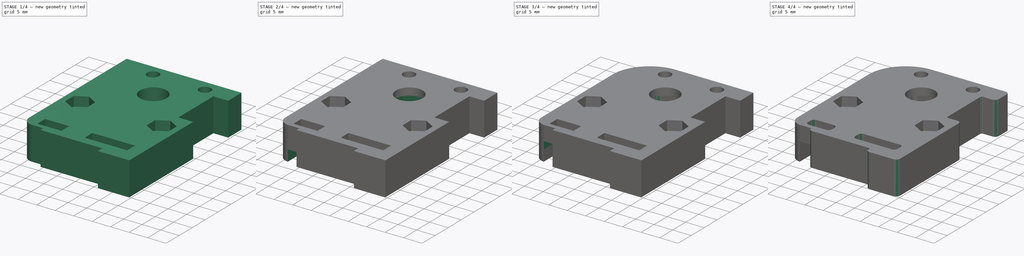
[diagram: build sequence overview — one tinted view per stage of 4, left to right]
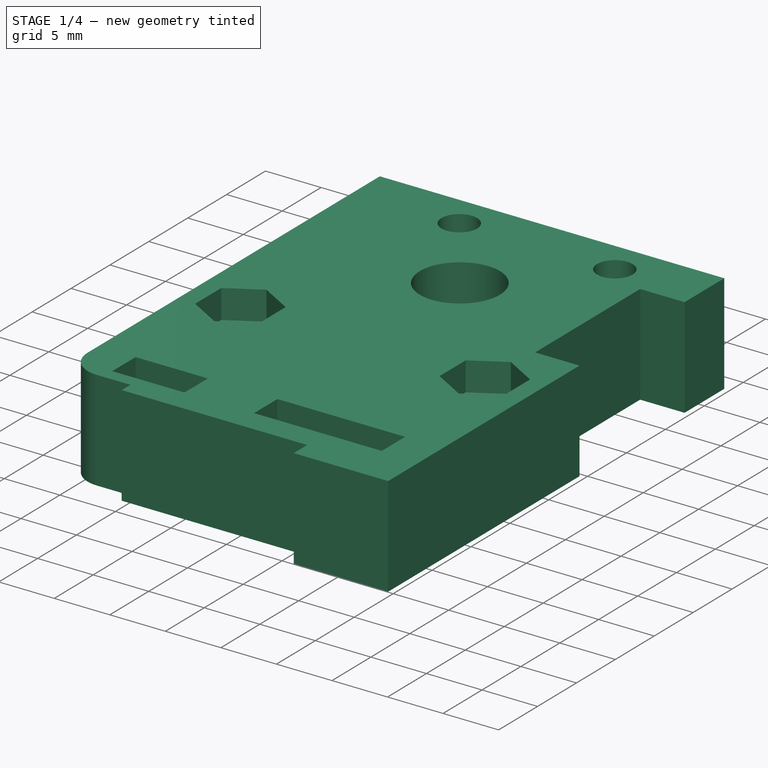
[diagram: stage 1 of 4 — iso view after this stage's code; geometry added in this stage tinted green]
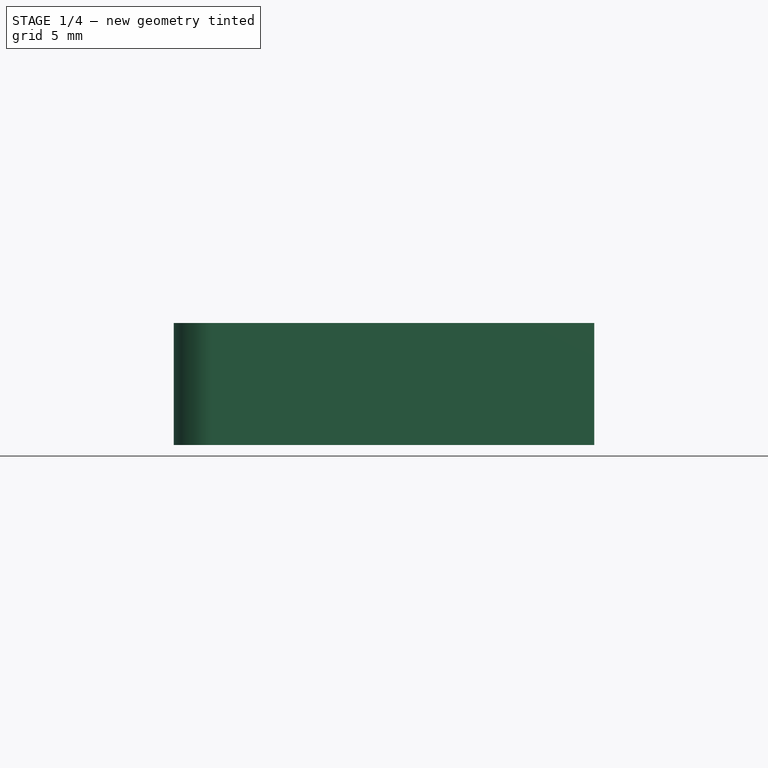
[diagram: stage 1 of 4 — front view after this stage's code; geometry added in this stage tinted green]
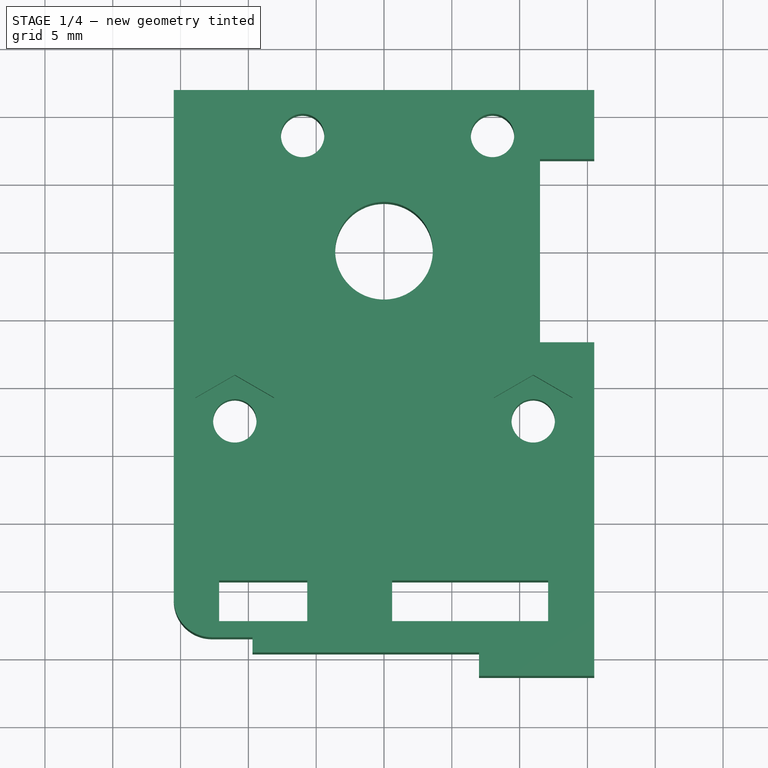
[diagram: stage 1 of 4 — top view after this stage's code; geometry added in this stage tinted green]
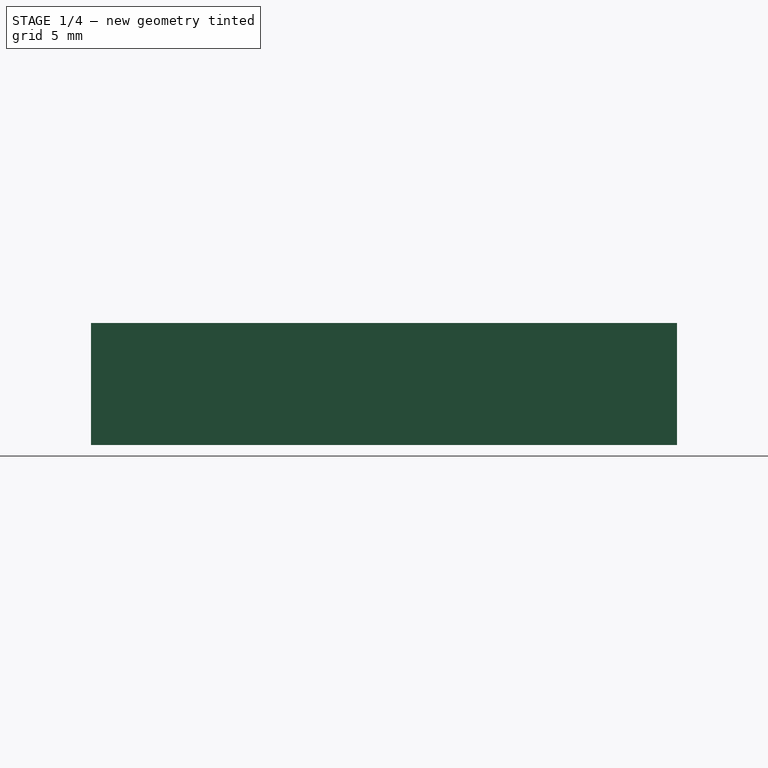
[diagram: stage 1 of 4 — right view after this stage's code; geometry added in this stage tinted green]
FCSTD DOCUMENT  (FreeCAD 0.18.4R)
Label: MJ_3d_holder_right_3p
License: All rights reserved
LicenseURL: http://en.wikipedia.org/wiki/All_rights_reserved
objects: Sketcher::SketchObject×5, PartDesign::Pocket×4, PartDesign::Fillet×4, PartDesign::Pad×1, PartDesign::Body×1
note: 20 computed .brp shape members not serialized (recipe doc carries the construction recipe); baked Part::Feature solids carry a one-line shape summary decoded from their .brp

FEATURE [Sketcher::SketchObject] Sketch
  MapMode = 5
  Support = -> [XY_Plane]
  sketch-geometry (56):
    g0: Circle CenterX=0 CenterY=0 CenterZ=0 NormalX=0 NormalY=0 NormalZ=1 AngleXU=0 Radius=3.6
    g1: Circle CenterX=-11 CenterY=-12.5 CenterZ=0 NormalX=0 NormalY=0 NormalZ=1 AngleXU=0 Radius=1.6
    g2: Circle CenterX=11 CenterY=-12.5 CenterZ=0 NormalX=0 NormalY=0 NormalZ=1 AngleXU=0 Radius=1.6
    g3: Circle CenterX=-6 CenterY=8.5 CenterZ=0 NormalX=0 NormalY=0 NormalZ=1 AngleXU=0 Radius=1.6
    g4: Circle CenterX=8 CenterY=8.5 CenterZ=0 NormalX=0 NormalY=0 NormalZ=1 AngleXU=0 Radius=1.6
    g5: LineSegment [constr] StartX=11.5 StartY=6.75 StartZ=0 EndX=14.5 EndY=6.75 EndZ=0
    g6: LineSegment [constr] StartX=14.5 StartY=6.75 StartZ=0 EndX=14.5 EndY=-6.75 EndZ=0
    g7: LineSegment [constr] StartX=14.5 StartY=-6.75 StartZ=0 EndX=11.5 EndY=-6.75 EndZ=0
    g8: LineSegment [constr] StartX=11.5 StartY=-6.75 StartZ=0 EndX=11.5 EndY=6.75 EndZ=0
    g9: GeomPoint X=13 Y=-6.75 Z=0
    g10: GeomPoint X=0 Y=-22 Z=0
    g11: LineSegment [constr] StartX=-12.7 StartY=-15.65 StartZ=0 EndX=12.7 EndY=-15.65 EndZ=0
    g12: LineSegment [constr] StartX=12.7 StartY=-15.65 StartZ=0 EndX=12.7 EndY=-28.35 EndZ=0
    g13: LineSegment [constr] StartX=12.7 StartY=-28.35 StartZ=0 EndX=-12.7 EndY=-28.35 EndZ=0
    g14: LineSegment [constr] StartX=-12.7 StartY=-28.35 StartZ=0 EndX=-12.7 EndY=-15.65 EndZ=0
    g15: LineSegment StartX=15.5 StartY=-31.35 StartZ=0 EndX=15.5 EndY=-6.75 EndZ=0
    g16: LineSegment StartX=15.5 StartY=11.85 StartZ=0 EndX=-15.5 EndY=11.85 EndZ=0
    g17: LineSegment StartX=-15.5 StartY=11.85 StartZ=0 EndX=-15.5 EndY=-25.7 EndZ=0
    g18: LineSegment [constr] StartX=-7 StartY=-29.62 StartZ=0 EndX=7 EndY=-29.62 EndZ=0
    g19: LineSegment [constr] StartX=7 StartY=-29.62 StartZ=0 EndX=7 EndY=-32.16 EndZ=0
    g20: LineSegment [constr] StartX=7 StartY=-32.16 StartZ=0 EndX=-7 EndY=-32.16 EndZ=0
    g21: LineSegment [constr] StartX=-7 StartY=-32.16 StartZ=0 EndX=-7 EndY=-29.62 EndZ=0
    g22: GeomPoint X=-7 Y=-30.89 Z=0
    g23: LineSegment [constr] StartX=-6 StartY=6 StartZ=0 EndX=6 EndY=6 EndZ=0
    g24: LineSegment [constr] StartX=6 StartY=6 StartZ=0 EndX=6 EndY=-6 EndZ=0
    g25: LineSegment [constr] StartX=6 StartY=-6 StartZ=0 EndX=-6 EndY=-6 EndZ=0
    g26: LineSegment [constr] StartX=-6 StartY=-6 StartZ=0 EndX=-6 EndY=6 EndZ=0
    g27: LineSegment [constr] StartX=-10.5 StartY=10.5 StartZ=0 EndX=15.8 EndY=10.5 EndZ=0
    g28: LineSegment [constr] StartX=15.8 StartY=10.5 StartZ=0 EndX=15.8 EndY=-8.5 EndZ=0
    g29: LineSegment [constr] StartX=15.8 StartY=-8.5 StartZ=0 EndX=-10.5 EndY=-8.5 EndZ=0
    g30: LineSegment [constr] StartX=-10.5 StartY=-8.5 StartZ=0 EndX=-10.5 EndY=10.5 EndZ=0
    g31: LineSegment StartX=11.5 StartY=6.75 StartZ=0 EndX=15.5 EndY=6.75 EndZ=0
    g32: LineSegment StartX=15.5 StartY=-6.75 StartZ=0 EndX=11.5 EndY=-6.75 EndZ=0
    g33: LineSegment StartX=11.5 StartY=-6.75 StartZ=0 EndX=11.5 EndY=6.75 EndZ=0
    g34: LineSegment StartX=15.5 StartY=6.75 StartZ=0 EndX=15.5 EndY=11.85 EndZ=0
    g35: LineSegment StartX=7 StartY=-29.62 StartZ=0 EndX=7 EndY=-31.35 EndZ=0
    g36: LineSegment StartX=7 StartY=-31.35 StartZ=0 EndX=15.5 EndY=-31.35 EndZ=0
    g37: Circle [constr] CenterX=-10.16 CenterY=-25.81 CenterZ=0 NormalX=0 NormalY=0 NormalZ=1 AngleXU=0 Radius=0.5
    g38: Circle [constr] CenterX=2.54 CenterY=-25.81 CenterZ=0 NormalX=0 NormalY=0 NormalZ=1 AngleXU=0 Radius=0.5
    g39: Circle [constr] CenterX=10.16 CenterY=-25.81 CenterZ=0 NormalX=0 NormalY=0 NormalZ=1 AngleXU=0 Radius=0.5
    g40: LineSegment StartX=-5.66 StartY=-24.31 StartZ=0 EndX=-12.16 EndY=-24.31 EndZ=0
    g41: LineSegment StartX=-12.16 StartY=-24.31 StartZ=0 EndX=-12.16 EndY=-27.31 EndZ=0
    g42: LineSegment StartX=-12.16 StartY=-27.31 StartZ=0 EndX=-5.66 EndY=-27.31 EndZ=0
    g43: LineSegment StartX=-5.66 StartY=-27.31 StartZ=0 EndX=-5.66 EndY=-24.31 EndZ=0
    g44: LineSegment StartX=0.6 StartY=-24.31 StartZ=0 EndX=12.1 EndY=-24.31 EndZ=0
    g45: LineSegment StartX=12.1 StartY=-24.31 StartZ=0 EndX=12.1 EndY=-27.31 EndZ=0
    g46: LineSegment StartX=12.1 StartY=-27.31 StartZ=0 EndX=0.6 EndY=-27.31 EndZ=0
    g47: LineSegment StartX=0.6 StartY=-27.31 StartZ=0 EndX=0.6 EndY=-24.31 EndZ=0
    g48: GeomPoint X=6.35 Y=-25.81 Z=0
    g49: ArcOfCircle CenterX=-12.7 CenterY=-25.7 CenterZ=0 NormalX=0 NormalY=0 NormalZ=1 AngleXU=0 Radius=2.8 StartAngle=3.14159 EndAngle=4.71239
    g50: LineSegment StartX=-9.7 StartY=-29.62 StartZ=0 EndX=7 EndY=-29.62 EndZ=0
    g51: LineSegment StartX=-9.7 StartY=-29.62 StartZ=0 EndX=-9.7 EndY=-28.5 EndZ=0
    g52: LineSegment StartX=-9.7 StartY=-28.5 StartZ=0 EndX=-12.7 EndY=-28.5 EndZ=0
    g53: Circle [constr] CenterX=0 CenterY=-30.89 CenterZ=0 NormalX=0 NormalY=0 NormalZ=1 AngleXU=0 Radius=0.5
    g54: Circle [constr] CenterX=2.54 CenterY=-30.89 CenterZ=0 NormalX=0 NormalY=0 NormalZ=1 AngleXU=0 Radius=0.5
    g55: Circle [constr] CenterX=5.08 CenterY=-30.89 CenterZ=0 NormalX=0 NormalY=0 NormalZ=1 AngleXU=0 Radius=0.5
  constraints (151):
    c: Coincident(g0,g-1)
    c: Diameter(g0) = 7.2
    c: Diameter(g2) = 3.2
    c: Equal(g1,g2)
    c: DistanceY(g2,g-1) = 12.5
    c: DistanceX(g1,g2) = 22
    c: Symmetric(g1,g2,g-2)
    c: Horizontal(g3,g4)
    c: Equal(g2,g4)
    c: Equal(g4,g3)
    c: DistanceY(g-1,g3) = 8.5
    c: DistanceX(g3,g4) = 14
    c: DistanceX(g3,g-1) = 6
    c: Coincident(g5,g6)
    c: Coincident(g6,g7)
    c: Coincident(g7,g8)
    c: Coincident(g8,g5)
    c: Horizontal(g5)
    c: Horizontal(g7)
    c: Vertical(g8)
    c: DistanceX(g5,g5) = 3
    c: DistanceY(g6,g6) = 13.5
    c: Symmetric(g5,g6,g-1)
    c: DistanceX(g-1,g9) = 13
    c: Symmetric(g7,g6,g9)
    c: PointOnObject(g10,g-2)
    c: DistanceY(g10,g0) = 22
    c: Coincident(g11,g12)
    c: Coincident(g12,g13)
    c: Coincident(g13,g14)
    c: Coincident(g14,g11)
    c: Horizontal(g11)
    c: Vertical(g12)
    c: Vertical(g14)
    c: DistanceX(g13,g13) = 25.4
    c: DistanceY(g12,g12) = 12.7
    c: Horizontal(g13)
    c: Symmetric(g11,g12,g10)
    c: Coincident(g36,g15)
    c: Coincident(g34,g16)
    c: Coincident(g16,g17)
    c: Vertical(g15)
    c: Vertical(g17)
    c: DistanceX(g16,g16) = 31
    c: Symmetric(g16,g34,g-2)
    c: DistanceY(g36,g12) = 3
    c: Coincident(g18,g19)
    c: Coincident(g19,g20)
    c: Coincident(g20,g21)
    c: Coincident(g21,g18)
    c: Vertical(g19)
    c: Vertical(g21)
    c: DistanceY(g19,g19) = 2.54
    c: DistanceX(g18,g18) = 14
    c: DistanceY(g22,g13) = 2.54
    c: Symmetric(g18,g20,g22)
    c: Coincident(g23,g24)
    c: Coincident(g24,g25)
    c: Coincident(g25,g26)
    c: Coincident(g26,g23)
    c: Horizontal(g23)
    c: Horizontal(g25)
    c: Vertical(g24)
    c: Vertical(g26)
    c: DistanceX(g23,g23) = 12
    c: Equal(g24,g23)
    c: Symmetric(g23,g24,g0)
    c: Coincident(g27,g28)
    c: Coincident(g28,g29)
    c: Coincident(g29,g30)
    c: Coincident(g30,g27)
    c: Horizontal(g27)
    c: Horizontal(g29)
    c: Vertical(g28)
    c: Vertical(g30)
    c: DistanceY(g28,g28) = 19
    c: DistanceX(g27,g27) = 26.3
    c: DistanceX(g27,g-1) = 10.5
    c: DistanceY(g-1,g27) = 10.5
    c: Coincident(g32,g33)
    c: Coincident(g33,g31)
    c: Horizontal(g31)
    c: Horizontal(g32)
    c: Vertical(g33)
    c: Coincident(g31,g5)
    c: Equal(g6,g33)
    c: Tangent(g15,g34)
    c: Vertical(g35)
    c: PointOnObject(g36,g19)
    c: Coincident(g32,g15)
    c: Coincident(g31,g34)
    c: Horizontal(g39,g38)
    c: Horizontal(g38,g37)
    c: Equal(g39,g38)
    c: Equal(g38,g37)
    c: Diameter(g37) = 1
    c: DistanceY(g37,g10) = 3.81
    c: DistanceX(g38,g39) = 7.62
    c: DistanceX(g10,g38) = 2.54
    c: DistanceX(g37,g-1) = 10.16
    c: Coincident(g40,g41)
    c: Coincident(g41,g42)
    c: Coincident(g42,g43)
    c: Coincident(g43,g40)
    c: Horizontal(g40)
    c: Horizontal(g42)
    c: Vertical(g41)
    c: Vertical(g43)
    c: Coincident(g44,g45)
    c: Coincident(g45,g46)
    c: Coincident(g46,g47)
    c: Coincident(g47,g44)
    c: Horizontal(g44)
    c: Horizontal(g46)
    c: Vertical(g45)
    c: Vertical(g47)
    c: Equal(g47,g43)
    c: DistanceY(g45,g45) = 3
    c: Symmetric(g38,g39,g48)
    c: Symmetric(g44,g45,g48)
    c: Horizontal(g44,g40)
    c: DistanceX(g46,g46) = 11.5
    c: DistanceX(g42,g42) = 6.5
    c: DistanceX(g40,g37) = 2
    c: DistanceY(g34,g34) = 5.1
    c: Tangent(g17,g49) = -1.5708
    c: Horizontal(g35,g18)
    c: Coincident(g35,g36)
    c: Symmetric(g20,g19,g-2)
    c: Horizontal(g18)
    c: PointOnObject(g50,g18)
    c: Coincident(g50,g35)
    c: Horizontal(g36)
    c: Vertical(g49,g49)
    c: Coincident(g51,g50)
    c: Vertical(g51)
    c: DistanceY(g51,g51) = 1.12
    c: Coincident(g52,g51)
    c: Horizontal(g52)
    c: DistanceX(g52,g52) = 3
    c: Coincident(g49,g52)
    c: Radius(g49) = 2.8
    c: PointOnObject(g53,g-2)
    c: Equal(g38,g53)
    c: Equal(g53,g54)
    c: Equal(g54,g55)
    c: Horizontal(g53,g54)
    c: Horizontal(g54,g55)
    c: DistanceX(g53,g54) = 2.54
    c: DistanceX(g54,g55) = 2.54
    c: DistanceY(g54,g38) = 5.08
FEATURE [PartDesign::Pad] Pad
  Length = 9
  Length2 = 100
  Profile = -> Sketch
  Type = 0
FEATURE [Sketcher::SketchObject] Sketch001
  MapMode = 5
  Placement = pos=(0,0,9) rot=(0,0,1;0rad)
  Support = -> [Pad]
  sketch-geometry (14):
    g0: LineSegment StartX=-8.1 StartY=-14.1743 StartZ=0 EndX=-8.1 EndY=-10.8257 EndZ=0
    g1: LineSegment StartX=-8.1 StartY=-10.8257 StartZ=0 EndX=-11 EndY=-9.15137 EndZ=0
    g2: LineSegment StartX=-11 StartY=-9.15137 StartZ=0 EndX=-13.9 EndY=-10.8257 EndZ=0
    g3: LineSegment StartX=-13.9 StartY=-10.8257 StartZ=0 EndX=-13.9 EndY=-14.1743 EndZ=0
    g4: LineSegment StartX=-13.9 StartY=-14.1743 StartZ=0 EndX=-11 EndY=-15.8486 EndZ=0
    g5: LineSegment StartX=-11 StartY=-15.8486 StartZ=0 EndX=-8.1 EndY=-14.1743 EndZ=0
    g6: Circle [constr] CenterX=-11 CenterY=-12.5 CenterZ=0 NormalX=0 NormalY=0 NormalZ=1 AngleXU=0 Radius=3.34863
    g7: LineSegment StartX=13.9 StartY=-14.1743 StartZ=0 EndX=13.9 EndY=-10.8257 EndZ=0
    g8: LineSegment StartX=13.9 StartY=-10.8257 StartZ=0 EndX=11 EndY=-9.15137 EndZ=0
    g9: LineSegment StartX=11 StartY=-9.15137 StartZ=0 EndX=8.1 EndY=-10.8257 EndZ=0
    g10: LineSegment StartX=8.1 StartY=-10.8257 StartZ=0 EndX=8.1 EndY=-14.1743 EndZ=0
    g11: LineSegment StartX=8.1 StartY=-14.1743 StartZ=0 EndX=11 EndY=-15.8486 EndZ=0
    g12: LineSegment StartX=11 StartY=-15.8486 StartZ=0 EndX=13.9 EndY=-14.1743 EndZ=0
    g13: Circle [constr] CenterX=11 CenterY=-12.5 CenterZ=0 NormalX=0 NormalY=0 NormalZ=1 AngleXU=0 Radius=3.34863
  constraints (33):
    c: Coincident(g0,g1)
    c: Coincident(g1,g2)
    c: Coincident(g2,g3)
    c: Coincident(g3,g4)
    c: Coincident(g4,g5)
    c: Coincident(g5,g0)
    c: Equal(g0, g1-g5) x5
    c: PointOnObject(g0,g6)
    c: PointOnObject(g1,g6)
    c: PointOnObject(g2,g6)
    c: PointOnObject(g3,g6)
    c: PointOnObject(g4,g6)
    c: PointOnObject(g5,g6)
    c: Coincident(g7,g8)
    c: Coincident(g8,g9)
    c: Coincident(g9,g10)
    c: Coincident(g10,g11)
    c: Coincident(g11,g12)
    c: Coincident(g12,g7)
    c: Equal(g7, g8-g12) x5
    c: PointOnObject(g7,g13)
    c: PointOnObject(g8,g13)
    c: PointOnObject(g9,g13)
    c: PointOnObject(g10,g13)
    c: PointOnObject(g11,g13)
    c: PointOnObject(g12,g13)
    c: DistanceX(g6,g13) = 22
    c: Symmetric(g6,g13,g-2)
    c: DistanceY(g6,g-1) = 12.5
    c: DistanceX(g3,g0) = 5.8
    c: Vertical(g3)
    c: DistanceX(g10,g7) = 5.8
    c: Vertical(g7)
FEATURE [Sketcher::SketchObject] Sketch002
  MapMode = 5
  Placement = pos=(0,0,0) rot=(1,0,0;3.14159rad)
  sketch-geometry (12):
    g0: LineSegment StartX=8.25 StartY=-4 StartZ=0 EndX=6.25 EndY=-4 EndZ=0
    g1: LineSegment StartX=-8.25 StartY=-4 StartZ=0 EndX=-8.25 EndY=4 EndZ=0
    g2: LineSegment StartX=-8.25 StartY=4 StartZ=0 EndX=-6.25 EndY=4 EndZ=0
    g3: LineSegment StartX=8.25 StartY=4 StartZ=0 EndX=8.25 EndY=-4 EndZ=0
    g4: LineSegment StartX=-6.25 StartY=6.25 StartZ=0 EndX=6.25 EndY=6.25 EndZ=0
    g5: LineSegment StartX=6.25 StartY=6.25 StartZ=0 EndX=6.25 EndY=4 EndZ=0
    g6: LineSegment StartX=6.25 StartY=-6.25 StartZ=0 EndX=-6.25 EndY=-6.25 EndZ=0
    g7: LineSegment StartX=-6.25 StartY=-6.25 StartZ=0 EndX=-6.25 EndY=-4 EndZ=0
    g8: LineSegment StartX=6.25 StartY=4 StartZ=0 EndX=8.25 EndY=4 EndZ=0
    g9: LineSegment StartX=-6.25 StartY=-4 StartZ=0 EndX=-8.25 EndY=-4 EndZ=0
    g10: LineSegment StartX=-6.25 StartY=4 StartZ=0 EndX=-6.25 EndY=6.25 EndZ=0
    g11: LineSegment StartX=6.25 StartY=-4 StartZ=0 EndX=6.25 EndY=-6.25 EndZ=0
  constraints (30):
    c: Coincident(g9,g1)
    c: Coincident(g1,g2)
    c: Coincident(g8,g3)
    c: Coincident(g3,g0)
    c: Horizontal(g0)
    c: Horizontal(g2)
    c: Vertical(g1)
    c: Vertical(g3)
    c: DistanceX(g2,g8) = 16.5
    c: DistanceY(g1,g1) = 8
    c: Symmetric(g0,g1,g-1)
    c: Coincident(g4,g5)
    c: Coincident(g11,g6)
    c: Coincident(g6,g7)
    c: Coincident(g10,g4)
    c: Horizontal(g4)
    c: Horizontal(g6)
    c: Vertical(g5)
    c: Vertical(g7)
    c: DistanceX(g4,g4) = 12.5
    c: DistanceY(g7,g10) = 12.5
    c: Symmetric(g4,g11,g-1)
    c: Tangent(g2,g8)
    c: Tangent(g0,g9)
    c: Coincident(g7,g9)
    c: Coincident(g10,g2)
    c: Tangent(g7,g10)
    c: Coincident(g5,g8)
    c: Coincident(g11,g0)
    c: Tangent(g5,g11)
FEATURE [Sketcher::SketchObject] Sketch003
  MapMode = 5
  Placement = pos=(0,0,0) rot=(1,0,0;3.14159rad)
  sketch-geometry (5):
    g0: LineSegment StartX=12.85 StartY=15.5 StartZ=0 EndX=-12.85 EndY=15.5 EndZ=0
    g1: LineSegment StartX=-12.85 StartY=15.5 StartZ=0 EndX=-12.85 EndY=28.5 EndZ=0
    g2: LineSegment StartX=-12.85 StartY=28.5 StartZ=0 EndX=12.85 EndY=28.5 EndZ=0
    g3: LineSegment StartX=12.85 StartY=28.5 StartZ=0 EndX=12.85 EndY=15.5 EndZ=0
    g4: GeomPoint X=0 Y=22 Z=0
  constraints (13):
    c: Coincident(g0,g1)
    c: Coincident(g1,g2)
    c: Coincident(g2,g3)
    c: Coincident(g3,g0)
    c: Horizontal(g0)
    c: Horizontal(g2)
    c: Vertical(g1)
    c: Vertical(g3)
    c: DistanceX(g2,g2) = 25.7
    c: DistanceY(g3,g3) = 13
    c: PointOnObject(g4,g-2)
    c: DistanceY(g-1,g4) = 22
    c: Symmetric(g0,g1,g4)
FEATURE [PartDesign::Pocket] Pocket
  BaseFeature = -> Pad
  Length = 2.6
  Length2 = 100
  Profile = -> Sketch001
  Type = 0
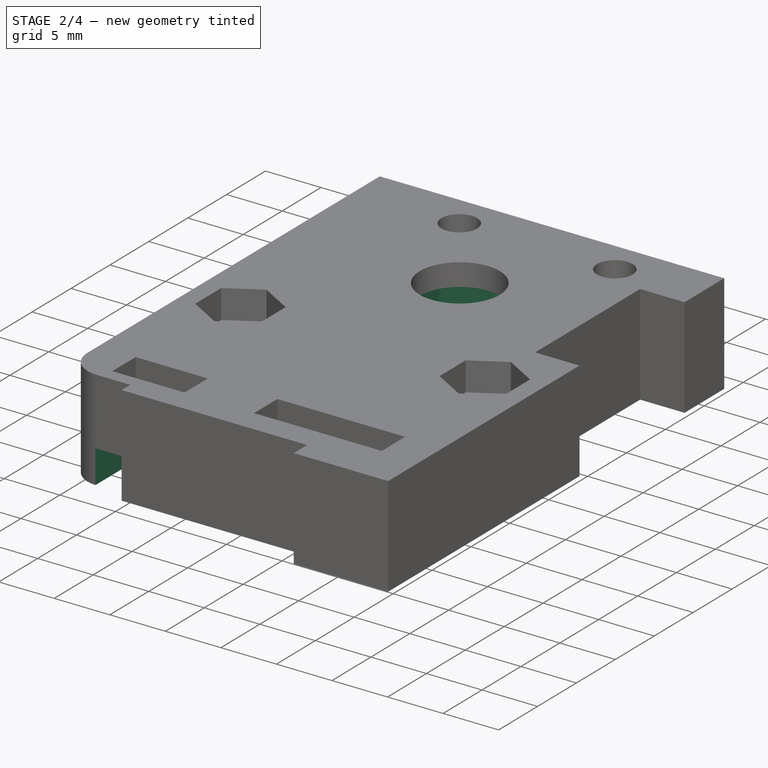
[diagram: stage 2 of 4 — iso view after this stage's code; geometry added in this stage tinted green]
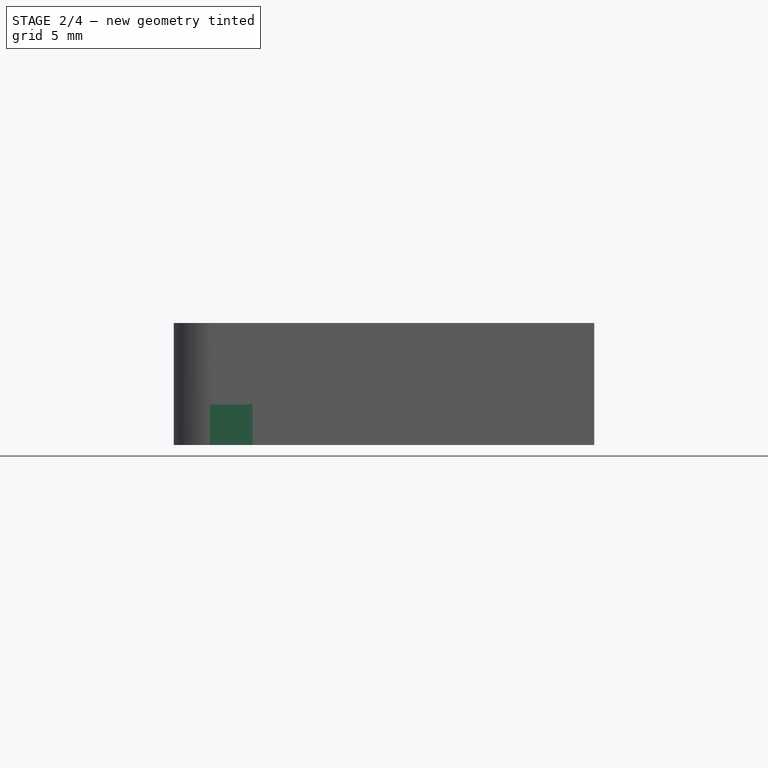
[diagram: stage 2 of 4 — front view after this stage's code; geometry added in this stage tinted green]
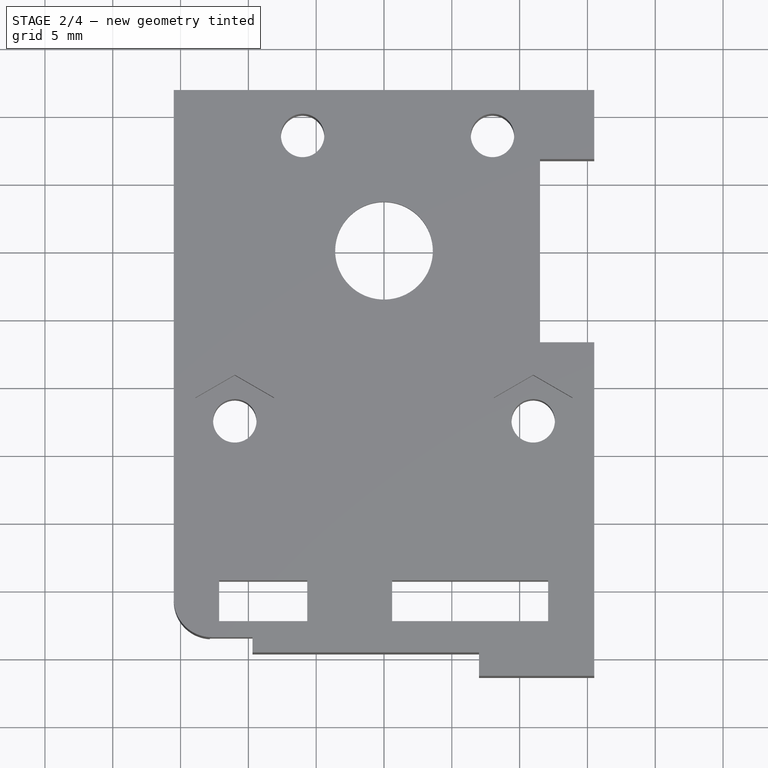
[diagram: stage 2 of 4 — top view after this stage's code; geometry added in this stage tinted green]
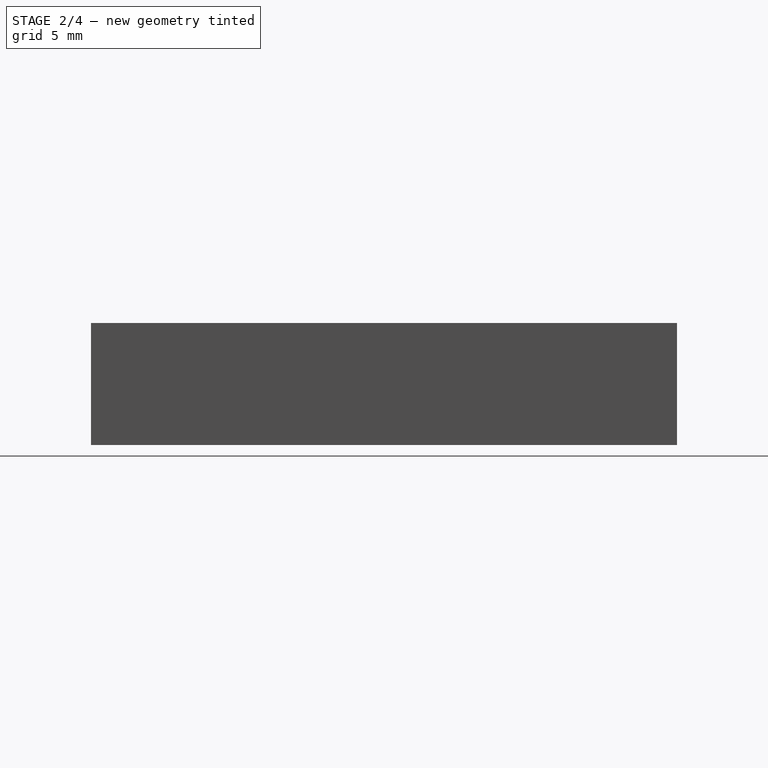
[diagram: stage 2 of 4 — right view after this stage's code; geometry added in this stage tinted green]
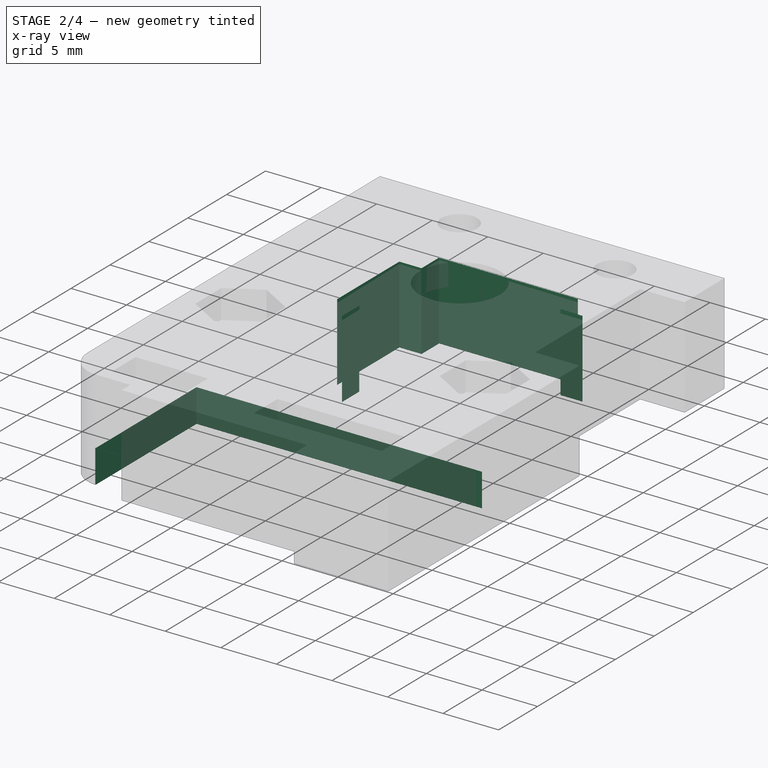
[diagram: stage 2 of 4 — x-ray composite at the iso view; earlier geometry ghosted, this stage's added geometry solid]
FEATURE [PartDesign::Pocket] Pocket001
  BaseFeature = -> Pocket
  Length = 7
  Length2 = 100
  Profile = -> Sketch002
  Type = 0
FEATURE [PartDesign::Pocket] Pocket002
  BaseFeature = -> Pocket001
  Length = 3
  Length2 = 100
  Profile = -> Sketch003
  Type = 0
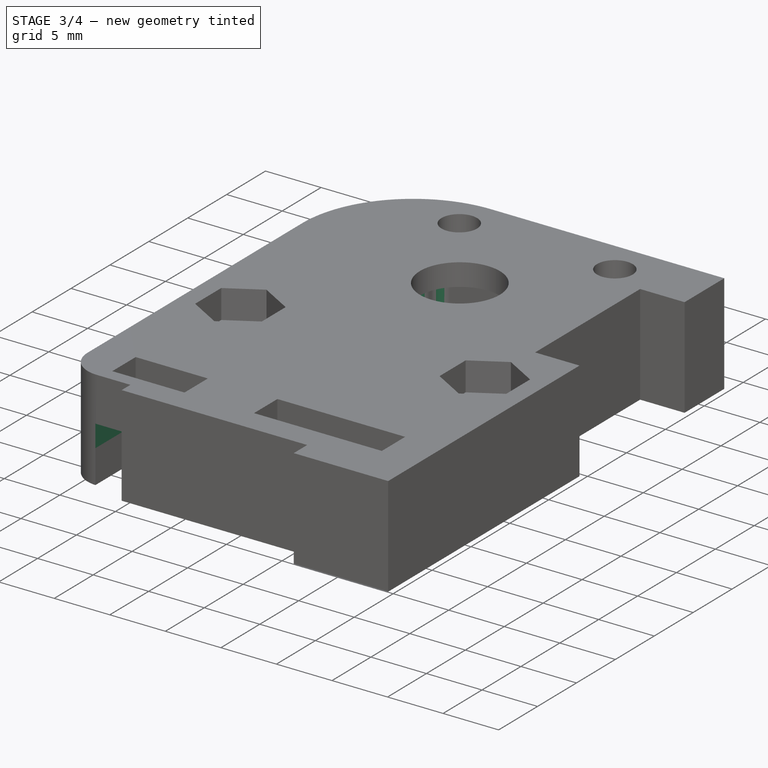
[diagram: stage 3 of 4 — iso view after this stage's code; geometry added in this stage tinted green]
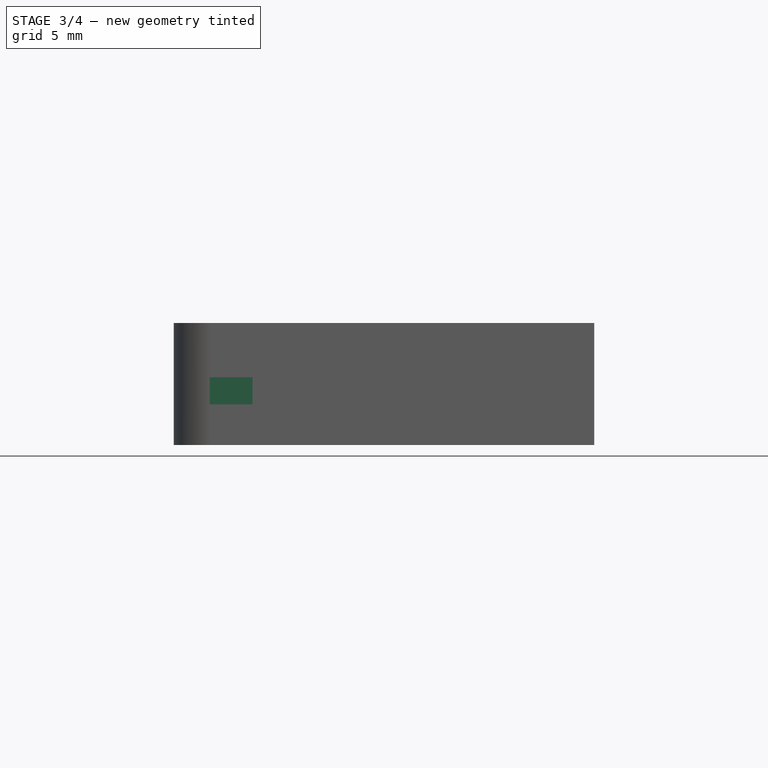
[diagram: stage 3 of 4 — front view after this stage's code; geometry added in this stage tinted green]
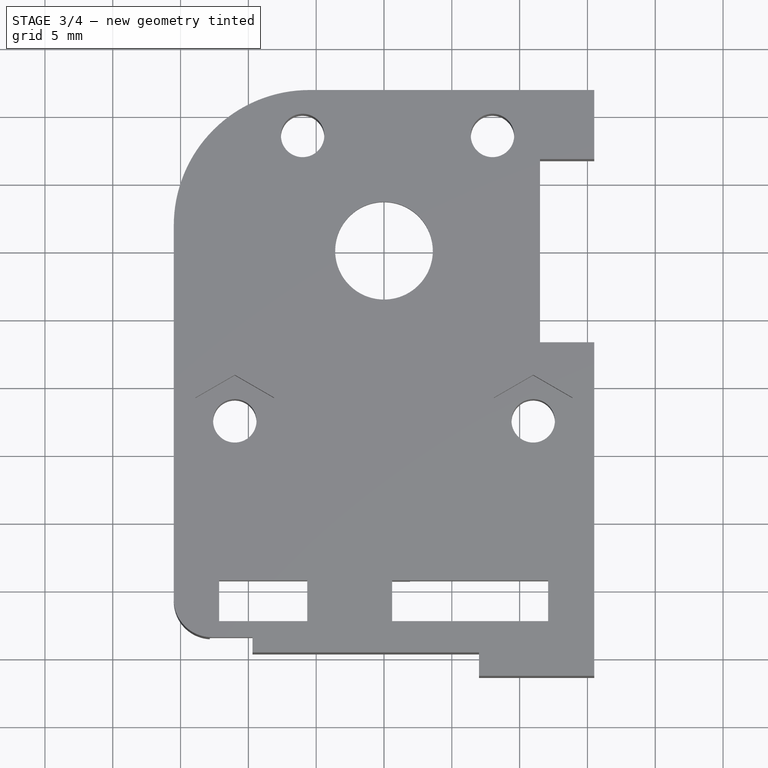
[diagram: stage 3 of 4 — top view after this stage's code; geometry added in this stage tinted green]
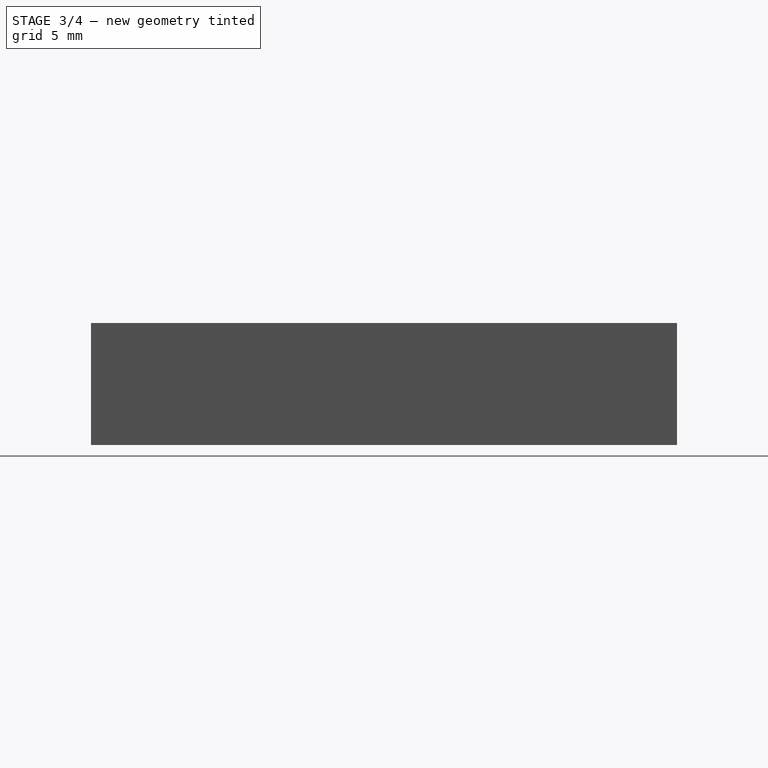
[diagram: stage 3 of 4 — right view after this stage's code; geometry added in this stage tinted green]
FEATURE [Sketcher::SketchObject] Sketch004
  MapMode = 5
  Placement = pos=(0,0,3) rot=(1,0,0;3.14159rad)
  Support = -> [Pocket002]
  sketch-geometry (34):
    g0: LineSegment [constr] StartX=12.85 StartY=15.5 StartZ=0 EndX=-12.85 EndY=15.5 EndZ=0
    g1: LineSegment [constr] StartX=-12.85 StartY=15.5 StartZ=0 EndX=-12.85 EndY=28.5 EndZ=0
    g2: LineSegment [constr] StartX=-12.85 StartY=28.5 StartZ=0 EndX=12.85 EndY=28.5 EndZ=0
    g3: LineSegment [constr] StartX=12.85 StartY=28.5 StartZ=0 EndX=12.85 EndY=15.5 EndZ=0
    g4: GeomPoint X=0 Y=22 Z=0
    g5: LineSegment [constr] StartX=12.85 StartY=20.5 StartZ=0 EndX=-12.85 EndY=20.5 EndZ=0
    g6: LineSegment [constr] StartX=-12.85 StartY=20.5 StartZ=0 EndX=-12.85 EndY=23.5 EndZ=0
    g7: LineSegment [constr] StartX=-12.85 StartY=23.5 StartZ=0 EndX=12.85 EndY=23.5 EndZ=0
    g8: LineSegment [constr] StartX=12.85 StartY=23.5 StartZ=0 EndX=12.85 EndY=20.5 EndZ=0
    g9: LineSegment [constr] StartX=1.5 StartY=15.5 StartZ=0 EndX=-1.5 EndY=15.5 EndZ=0
    g10: LineSegment [constr] StartX=-1.5 StartY=15.5 StartZ=0 EndX=-1.5 EndY=28.5 EndZ=0
    g11: LineSegment [constr] StartX=-1.5 StartY=28.5 StartZ=0 EndX=1.5 EndY=28.5 EndZ=0
    g12: LineSegment [constr] StartX=1.5 StartY=28.5 StartZ=0 EndX=1.5 EndY=15.5 EndZ=0
    g13: Circle CenterX=0 CenterY=22 CenterZ=0 NormalX=0 NormalY=0 NormalZ=1 AngleXU=0 Radius=1.8
    g14: LineSegment StartX=1.5 StartY=15.5 StartZ=0 EndX=12.85 EndY=15.5 EndZ=0
    g15: LineSegment StartX=12.85 StartY=15.5 StartZ=0 EndX=12.85 EndY=20.5 EndZ=0
    g16: LineSegment StartX=12.85 StartY=20.5 StartZ=0 EndX=3.5 EndY=20.5 EndZ=0
    g17: LineSegment StartX=1.5 StartY=18.5 StartZ=0 EndX=1.5 EndY=15.5 EndZ=0
    g18: LineSegment StartX=-1.5 StartY=15.5 StartZ=0 EndX=-12.85 EndY=15.5 EndZ=0
    g19: LineSegment StartX=-12.85 StartY=15.5 StartZ=0 EndX=-12.85 EndY=20.5 EndZ=0
    g20: LineSegment StartX=-12.85 StartY=20.5 StartZ=0 EndX=-3.5 EndY=20.5 EndZ=0
    g21: LineSegment StartX=-1.5 StartY=18.5 StartZ=0 EndX=-1.5 EndY=15.5 EndZ=0
    g22: LineSegment StartX=12.85 StartY=23.5 StartZ=0 EndX=3.5 EndY=23.5 EndZ=0
    g23: LineSegment StartX=1.5 StartY=25.5 StartZ=0 EndX=1.5 EndY=28.5 EndZ=0
    g24: LineSegment StartX=1.5 StartY=28.5 StartZ=0 EndX=12.85 EndY=28.5 EndZ=0
    g25: LineSegment StartX=12.85 StartY=28.5 StartZ=0 EndX=12.85 EndY=23.5 EndZ=0
    g26: LineSegment StartX=-12.85 StartY=23.5 StartZ=0 EndX=-3.5 EndY=23.5 EndZ=0
    g27: LineSegment StartX=-1.5 StartY=25.5 StartZ=0 EndX=-1.5 EndY=28.5 EndZ=0
    g28: LineSegment StartX=-1.5 StartY=28.5 StartZ=0 EndX=-12.85 EndY=28.5 EndZ=0
    g29: LineSegment StartX=-12.85 StartY=28.5 StartZ=0 EndX=-12.85 EndY=23.5 EndZ=0
    g30: ArcOfCircle CenterX=3.5 CenterY=18.5 CenterZ=0 NormalX=0 NormalY=0 NormalZ=1 AngleXU=0 Radius=2 StartAngle=1.5708 EndAngle=3.14159
    g31: ArcOfCircle CenterX=-3.5 CenterY=18.5 CenterZ=0 NormalX=0 NormalY=0 NormalZ=1 AngleXU=0 Radius=2 StartAngle=-9e-16 EndAngle=1.5708
    g32: ArcOfCircle CenterX=-3.5 CenterY=25.5 CenterZ=0 NormalX=0 NormalY=0 NormalZ=1 AngleXU=0 Radius=2 StartAngle=4.71239 EndAngle=6.28319
    g33: ArcOfCircle CenterX=3.5 CenterY=25.5 CenterZ=0 NormalX=0 NormalY=0 NormalZ=1 AngleXU=0 Radius=2 StartAngle=3.14159 EndAngle=4.71239
  constraints (85):
    c: Coincident(g0,g1)
    c: Coincident(g1,g2)
    c: Coincident(g2,g3)
    c: Coincident(g3,g0)
    c: Horizontal(g0)
    c: Horizontal(g2)
    c: Vertical(g1)
    c: Vertical(g3)
    c: DistanceX(g0,g0) = 25.7
    c: DistanceY(g3,g3) = 13
    c: PointOnObject(g4,g-2)
    c: DistanceY(g-1,g4) = 22
    c: Symmetric(g0,g1,g4)
    c: Coincident(g5,g6)
    c: Coincident(g6,g7)
    c: Coincident(g7,g8)
    c: Coincident(g8,g5)
    c: Horizontal(g5)
    c: Horizontal(g7)
    c: Vertical(g6)
    c: Vertical(g8)
    c: PointOnObject(g5,g3)
    c: Symmetric(g5,g6,g4)
    c: DistanceY(g5,g7) = 3
    c: Coincident(g9,g10)
    c: Coincident(g10,g11)
    c: Coincident(g11,g12)
    c: Coincident(g12,g9)
    c: Horizontal(g9)
    c: Horizontal(g11)
    c: Vertical(g10)
    c: Vertical(g12)
    c: PointOnObject(g9,g0)
    c: Symmetric(g9,g10,g4)
    c: DistanceX(g10,g11) = 3
    c: Coincident(g13,g4)
    c: Diameter(g13) = 3.6
    c: Coincident(g14,g15)
    c: Coincident(g15,g16)
    c: Coincident(g17,g14)
    c: Horizontal(g14)
    c: Horizontal(g16)
    c: Vertical(g15)
    c: Vertical(g17)
    c: Coincident(g14,g9)
    c: Coincident(g15,g5)
    c: Coincident(g18,g19)
    c: Coincident(g19,g20)
    c: Coincident(g21,g18)
    c: Horizontal(g18)
    c: Horizontal(g20)
    c: Vertical(g19)
    c: Vertical(g21)
    c: Coincident(g18,g9)
    c: Coincident(g19,g5)
    c: Coincident(g23,g24)
    c: Coincident(g24,g25)
    c: Coincident(g25,g22)
    c: Horizontal(g22)
    c: Horizontal(g24)
    c: Vertical(g23)
    c: Vertical(g25)
    c: Coincident(g22,g7)
    c: Coincident(g23,g11)
    c: Coincident(g27,g28)
    c: Coincident(g28,g29)
    c: Coincident(g29,g26)
    c: Horizontal(g26)
    c: Horizontal(g28)
    c: Vertical(g27)
    c: Vertical(g29)
    c: Coincident(g26,g6)
    c: Coincident(g27,g10)
    c: Tangent(g17,g30) = -1.5708
    c: Tangent(g16,g30) = -1.5708
    c: Tangent(g21,g31) = 1.5708
    c: Tangent(g20,g31) = 1.5708
    c: Tangent(g26,g32) = -1.5708
    c: Tangent(g27,g32) = -1.5708
    c: Tangent(g22,g33) = 1.5708
    c: Tangent(g23,g33) = 1.5708
    c: Radius(g30) = 2
    c: Equal(g30,g31)
    c: Equal(g31,g32)
    c: Equal(g32,g33)
FEATURE [PartDesign::Pocket] Pocket003
  BaseFeature = -> Pocket002
  Length = 2
  Length2 = 100
  Profile = -> Sketch004
  Type = 0
FEATURE [PartDesign::Fillet] Fillet
  Base = -> Pocket003 [Edge99]
  BaseFeature = -> Pocket003
  Radius = 10
FEATURE [PartDesign::Fillet] Fillet001
  Base = -> Fillet [Edge92,Edge96,Edge88,Edge85,Edge86,Edge90,Edge94,Edge98,Edge102,Edge106,Edge104,Edge100]
  BaseFeature = -> Fillet
  Radius = 0.99
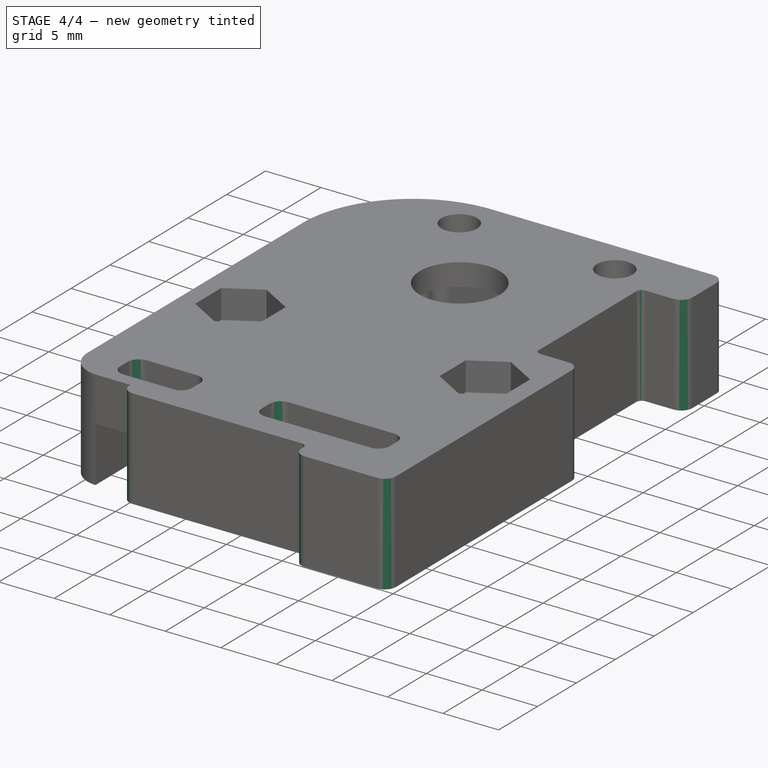
[diagram: stage 4 of 4 — iso view after this stage's code; geometry added in this stage tinted green]
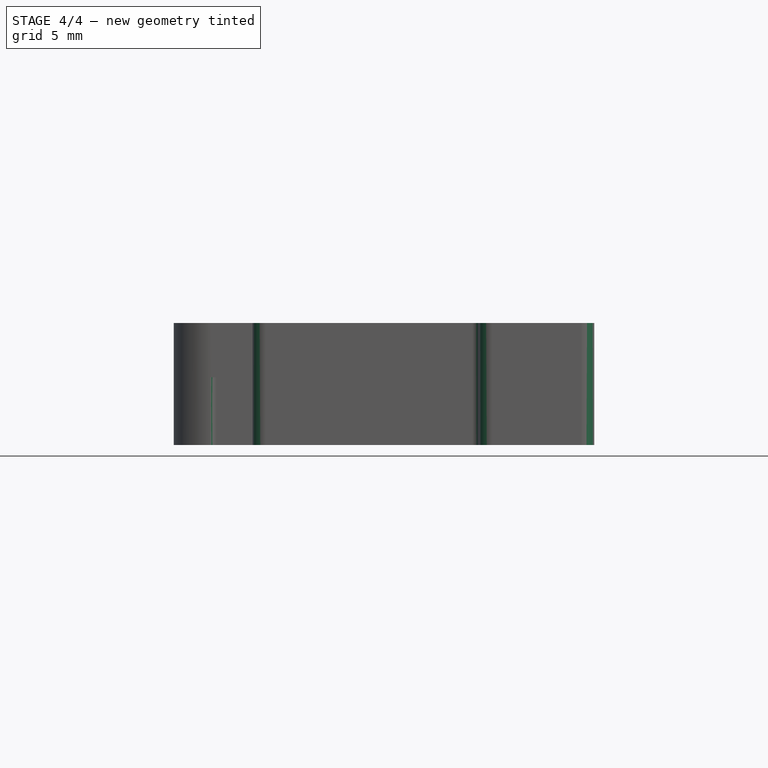
[diagram: stage 4 of 4 — front view after this stage's code; geometry added in this stage tinted green]
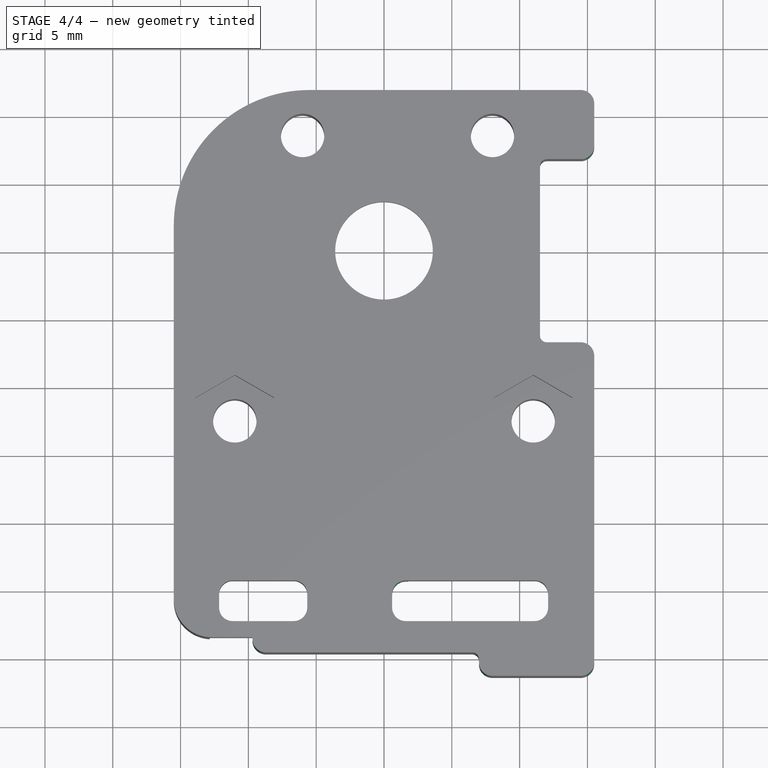
[diagram: stage 4 of 4 — top view after this stage's code; geometry added in this stage tinted green]
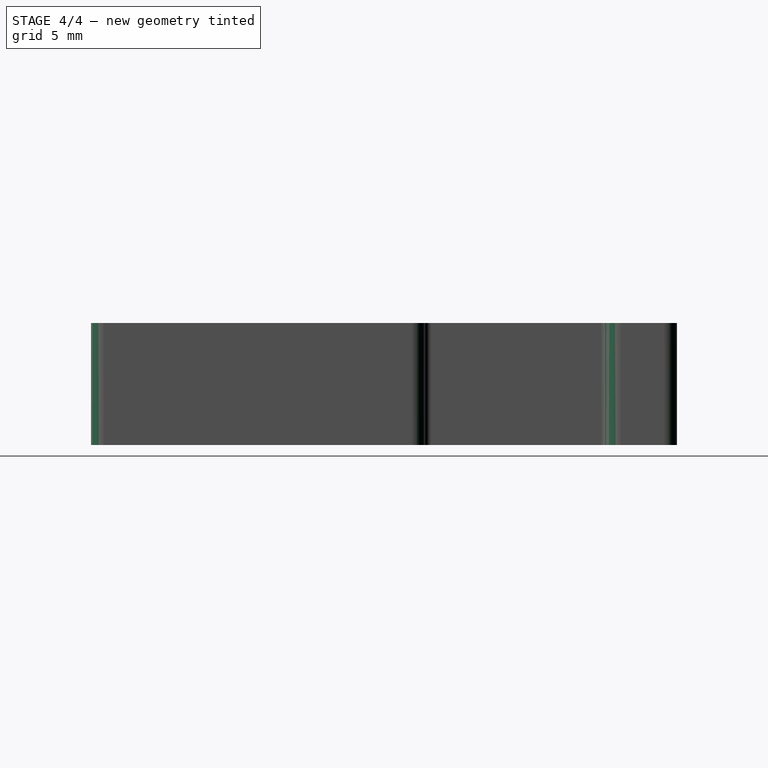
[diagram: stage 4 of 4 — right view after this stage's code; geometry added in this stage tinted green]
FEATURE [PartDesign::Fillet] Fillet002
  Base = -> Fillet001 [Edge104,Edge128,Edge110,Edge134,Edge138,Edge130,Edge242,Edge230,Edge229,Edge244,Edge231,Edge228,Edge240,Edge241]
  BaseFeature = -> Fillet001
  Radius = 1
FEATURE [PartDesign::Fillet] Fillet003
  Base = -> Fillet002 [Edge70,Edge76,Edge106,Edge78,Edge233,Edge238,Edge240,Edge84,Edge237,Edge75,Edge212,Edge197,Edge213,Edge289,Edge280,Edge312]
  BaseFeature = -> Fillet002
  Radius = 0.5
FEATURE [PartDesign::Body] Body  label="3d_holder_right"
  Group = -> [Sketch004,Sketch,Pad,Sketch001,Sketch002,Sketch003,Pocket,Pocket001,Pocket002,Pocket003,Fillet,Fillet001,Fillet002,Fillet003]
  Origin = -> Origin
  Tip = -> Fillet003
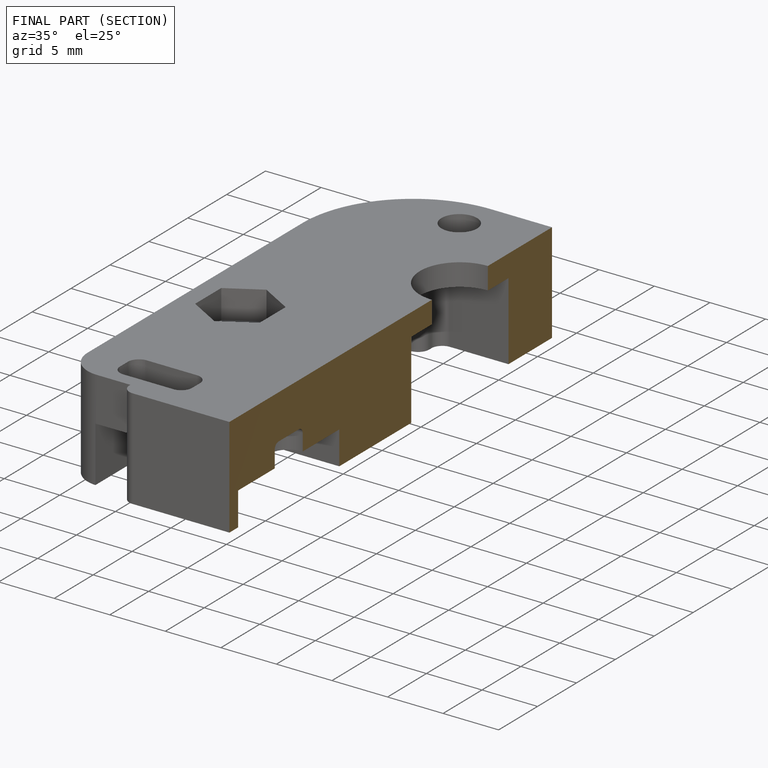
[diagram: finished part — half-section view (interior)]
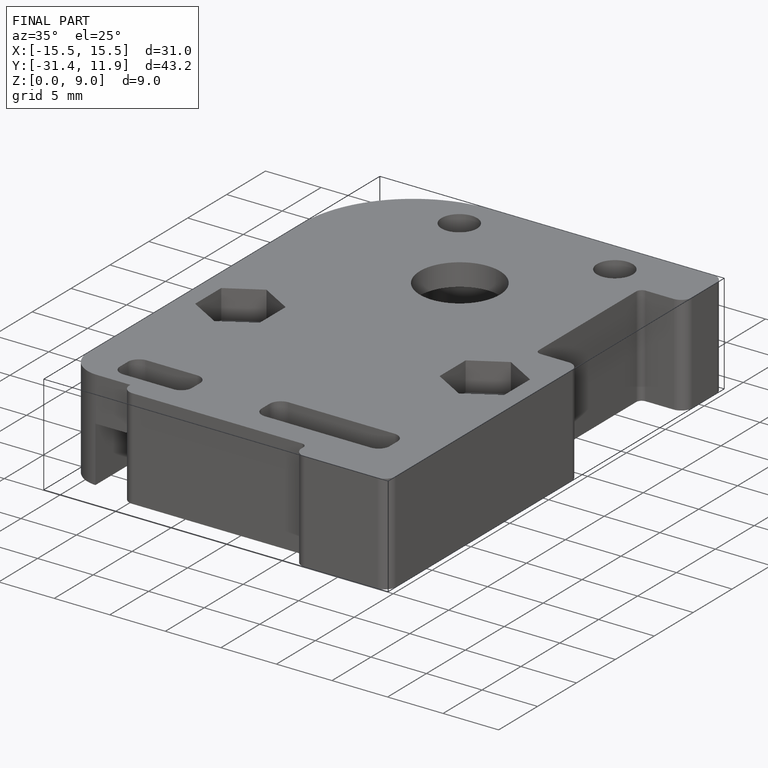
[diagram: finished part — iso view with bounding-box wireframe]
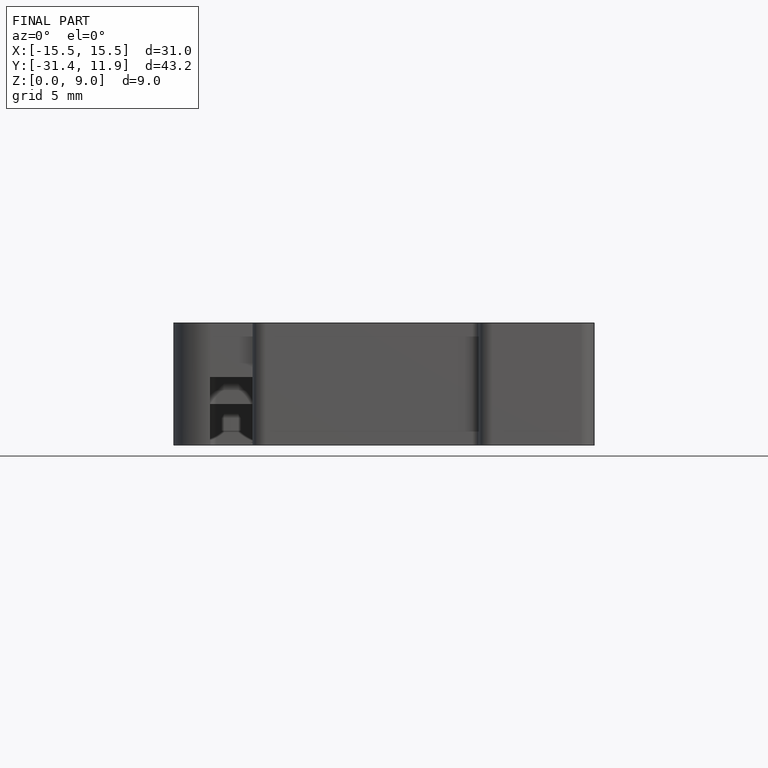
[diagram: finished part — front view with bounding-box wireframe]
